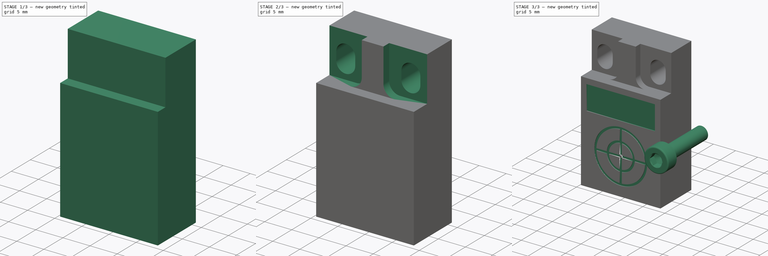
[diagram: build sequence overview — one tinted view per stage of 3, left to right]
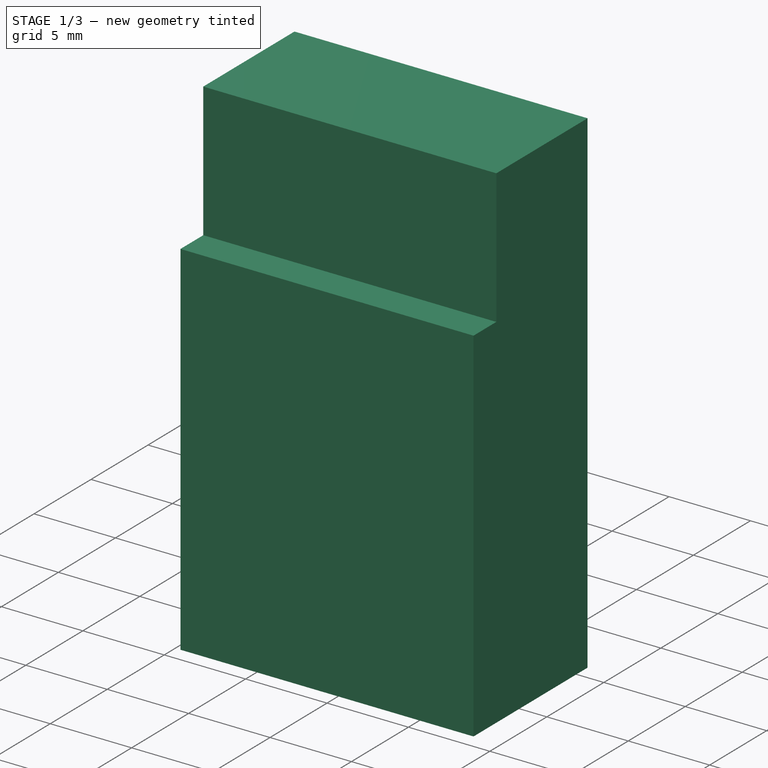
[diagram: stage 1 of 3 — iso view after this stage's code; geometry added in this stage tinted green]
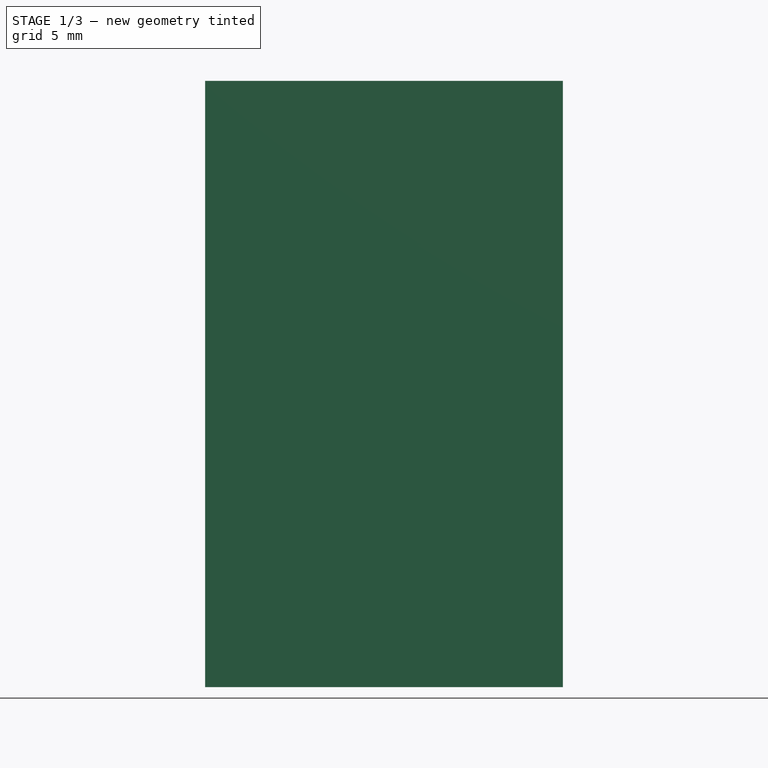
[diagram: stage 1 of 3 — front view after this stage's code; geometry added in this stage tinted green]
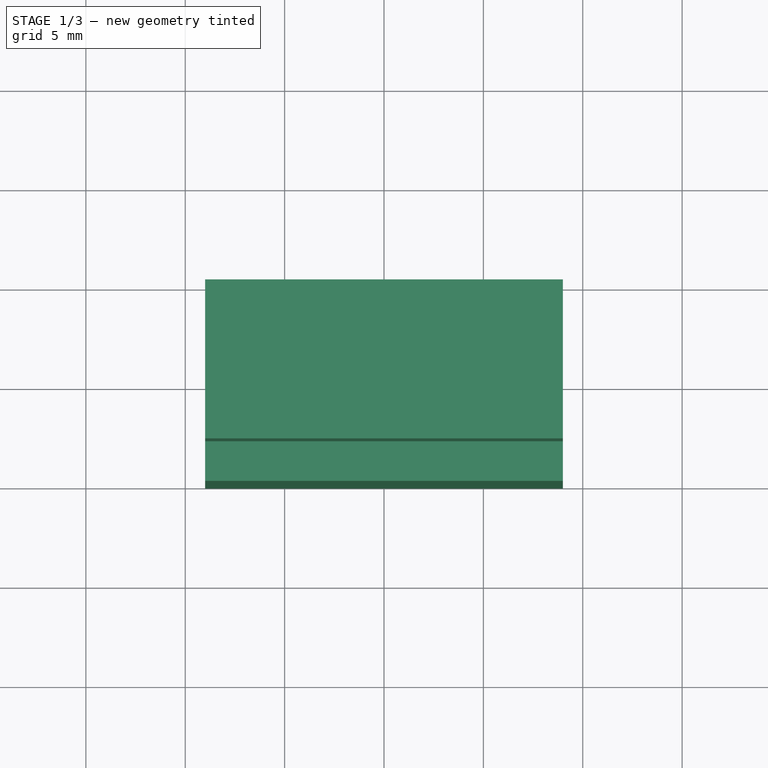
[diagram: stage 1 of 3 — top view after this stage's code; geometry added in this stage tinted green]
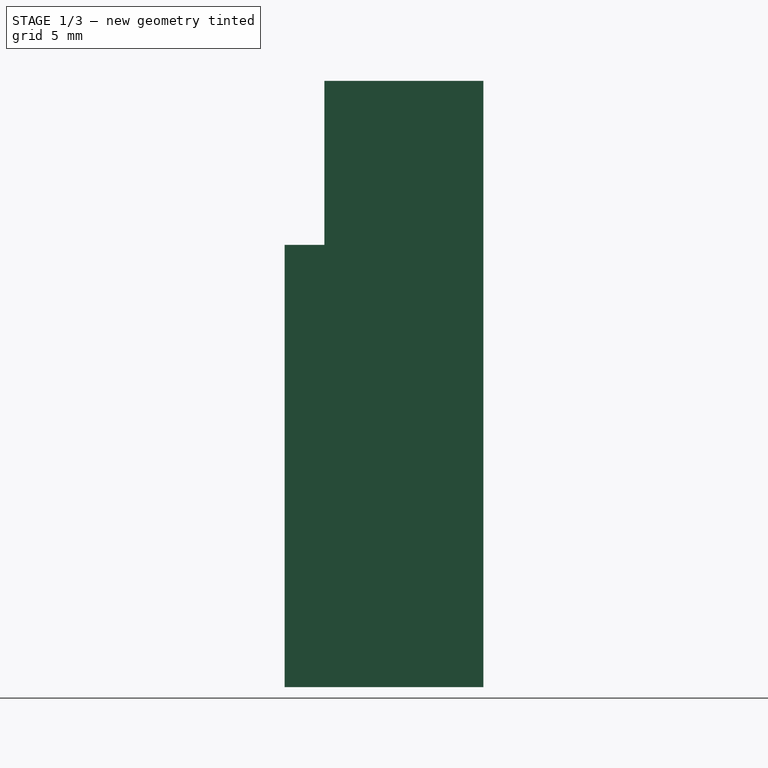
[diagram: stage 1 of 3 — right view after this stage's code; geometry added in this stage tinted green]
FCSTD DOCUMENT  (FreeCAD 2021.717R24301 +3842 (Git))
Label: LimitSensor
License: Creative Commons Attribution
LicenseURL: http://creativecommons.org/licenses/by/4.0/
objects: App::FeaturePython×10, Part::FeaturePython×8, Sketcher::SketchObject×6, PartDesign::Pocket×4, App::Link×2, App::DocumentObjectGroup×2, App::LinkElement×2, PartDesign::Pad×1, PartDesign::Mirrored×1, PartDesign::Body×1
note: 32 computed .brp shape members not serialized (recipe doc carries the construction recipe); baked Part::Feature solids carry a one-line shape summary decoded from their .brp

FEATURE [Sketcher::SketchObject] Sketch
  FullyConstrained = true
  MapMode = 5
  Placement = pos=(0,0,0) rot=(1,0,0;1.5708rad)
  Support = -> [XZ_Plane]
  sketch-geometry (4):
    g0: LineSegment StartX=-9 StartY=15.25 StartZ=0 EndX=9 EndY=15.25 EndZ=0
    g1: LineSegment StartX=9 StartY=15.25 StartZ=0 EndX=9 EndY=-15.25 EndZ=0
    g2: LineSegment StartX=9 StartY=-15.25 StartZ=0 EndX=-9 EndY=-15.25 EndZ=0
    g3: LineSegment StartX=-9 StartY=-15.25 StartZ=0 EndX=-9 EndY=15.25 EndZ=0
  constraints (11):
    c: Coincident(g0,g1)
    c: Coincident(g1,g2)
    c: Coincident(g2,g3)
    c: Coincident(g3,g0)
    c: Horizontal(g0)
    c: Horizontal(g2)
    c: Vertical(g1)
    c: Vertical(g3)
    c: Symmetric(g1,g0,g-1)
    c: DistanceX(g0,g0) = 18
    c: DistanceY(g1,g1) = 30.5
FEATURE [PartDesign::Pad] Pad
  ClaimChildren = false
  Direction = (1,1,1)
  Fit = 0
  FitJoin = 0
  InnerFit = 0
  InnerFitJoin = 0
  InnerTaperAngle = 0
  InnerTaperAngleRev = 0
  Length = 10
  Length2 = 100
  Linearize = true
  NewSolid = false
  Placement = pos=(0,0,0) rot=(1,0,0;1.5708rad)
  Profile = -> Sketch
  Refine = true
  Suppress = false
  Type = 0
  _ProfileBasedVersion = 1
FEATURE [Sketcher::SketchObject] Sketch001
  FullyConstrained = true
  MapMode = 5
  Placement = pos=(0,-10,2.2e-15) rot=(1,0,0;1.5708rad)
  Support = -> [Pad]
  sketch-geometry (4):
    g0: LineSegment StartX=-9 StartY=15.25 StartZ=0 EndX=9 EndY=15.25 EndZ=0
    g1: LineSegment StartX=9 StartY=15.25 StartZ=0 EndX=9 EndY=7 EndZ=0
    g2: LineSegment StartX=9 StartY=7 StartZ=0 EndX=-9 EndY=7 EndZ=0
    g3: LineSegment StartX=-9 StartY=7 StartZ=0 EndX=-9 EndY=15.25 EndZ=0
  constraints (11):
    c: Coincident(g0,g1)
    c: Coincident(g1,g2)
    c: Coincident(g2,g3)
    c: Coincident(g3,g0)
    c: Horizontal(g0)
    c: Vertical(g1)
    c: Vertical(g3)
    c: Symmetric(g1,g2,g-2)
    c: DistanceX(g0,g0) = 18
    c: DistanceY(g1,g1) = 8.25
    c: DistanceY(g-1,g1) = 7
FEATURE [PartDesign::Pocket] Pocket
  BaseFeature = -> Pad
  ClaimChildren = false
  Fit = 0
  FitJoin = 0
  InnerFit = 0
  InnerFitJoin = 0
  InnerTaperAngle = 0
  InnerTaperAngleRev = 0
  Length = 2
  Length2 = 100
  Linearize = true
  NewSolid = false
  Placement = pos=(0,0,0) rot=(1,0,0;1.5708rad)
  Profile = -> Sketch001
  Refine = true
  Suppress = false
  Type = 0
  _ProfileBasedVersion = 1
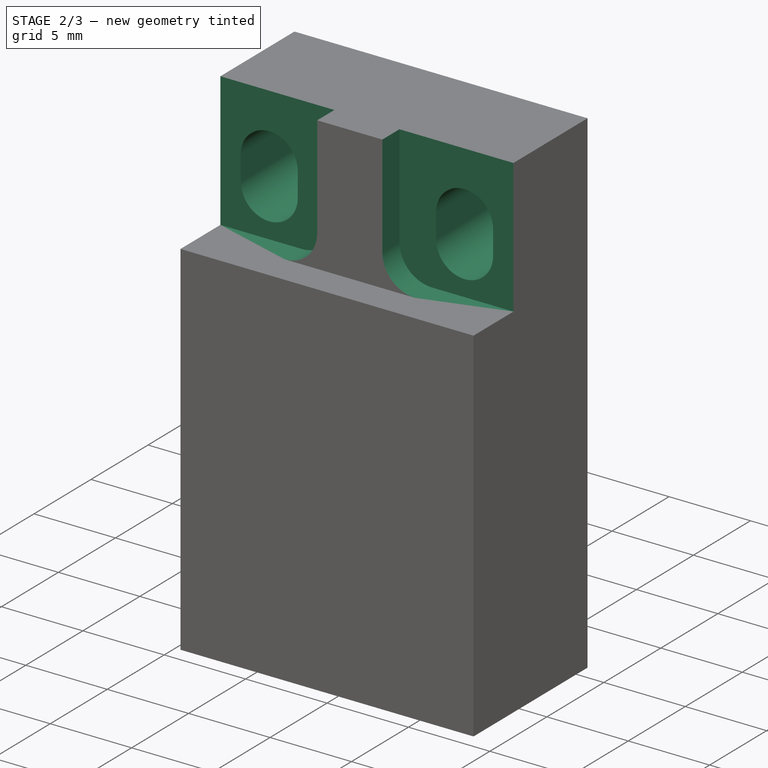
[diagram: stage 2 of 3 — iso view after this stage's code; geometry added in this stage tinted green]
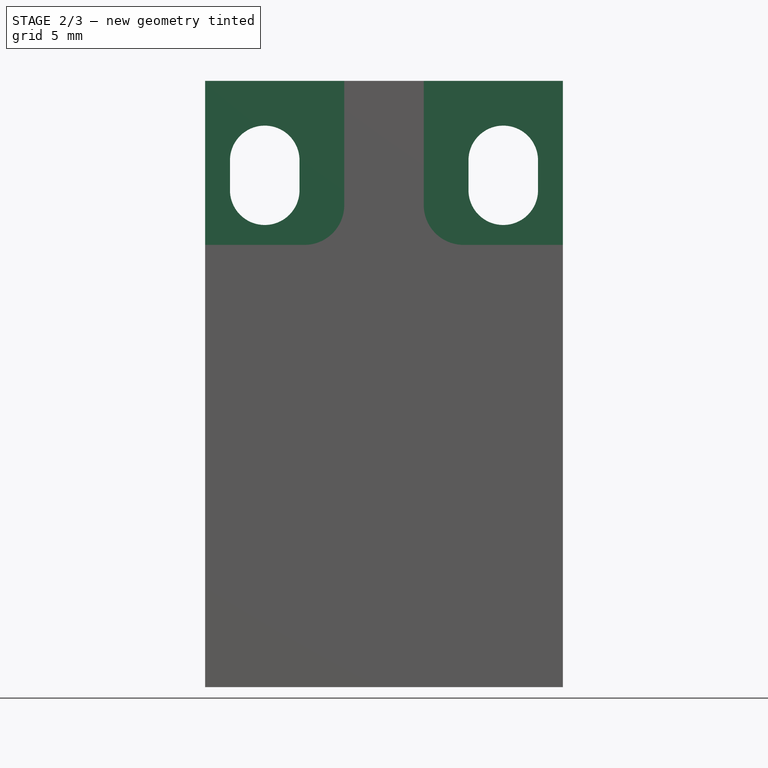
[diagram: stage 2 of 3 — front view after this stage's code; geometry added in this stage tinted green]
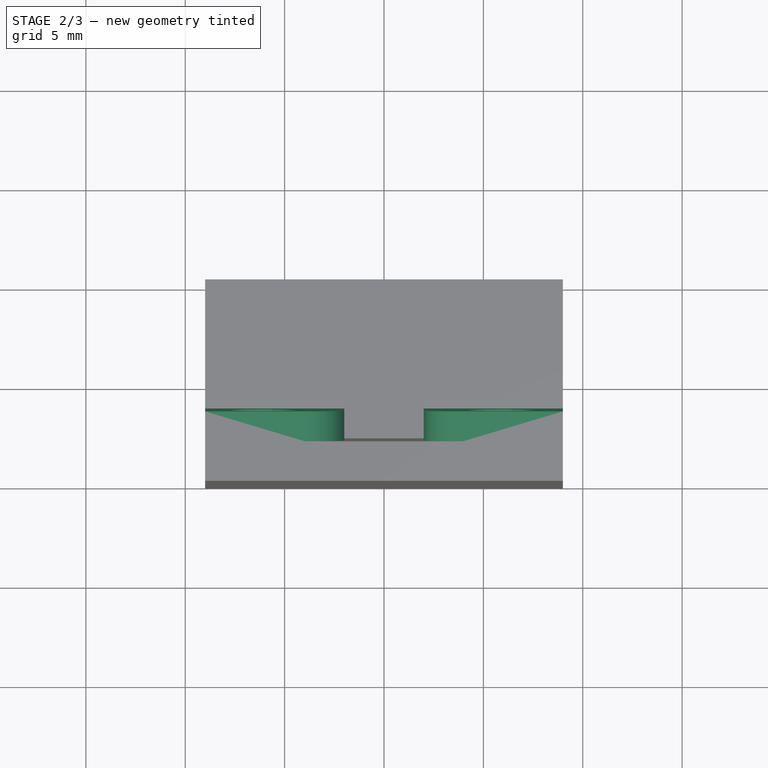
[diagram: stage 2 of 3 — top view after this stage's code; geometry added in this stage tinted green]
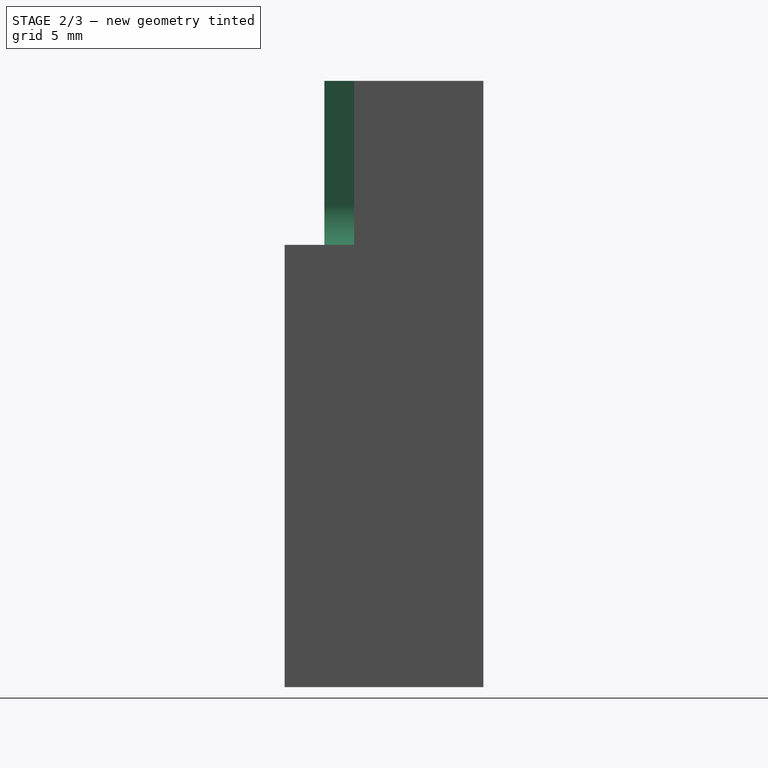
[diagram: stage 2 of 3 — right view after this stage's code; geometry added in this stage tinted green]
FEATURE [Sketcher::SketchObject] Sketch002
  FullyConstrained = true
  MapMode = 5
  Placement = pos=(0,-8,6.9e-15) rot=(1,0,0;1.5708rad)
  Support = -> [Pocket]
  sketch-geometry (4):
    g0: ArcOfCircle CenterX=-6 CenterY=11.25 CenterZ=0 NormalX=0 NormalY=0 NormalZ=1 AngleXU=0 Radius=1.75 StartAngle=0 EndAngle=3.14159
    g1: ArcOfCircle CenterX=-6 CenterY=9.75 CenterZ=0 NormalX=0 NormalY=0 NormalZ=1 AngleXU=0 Radius=1.75 StartAngle=3.14159 EndAngle=6.28319
    g2: LineSegment StartX=-7.75 StartY=11.25 StartZ=0 EndX=-7.75 EndY=9.75 EndZ=0
    g3: LineSegment StartX=-4.25 StartY=11.25 StartZ=0 EndX=-4.25 EndY=9.75 EndZ=0
  constraints (10):
    c: Tangent(g0,g3) = 1.5708
    c: Tangent(g0,g2) = -1.5708
    c: Tangent(g2,g1) = -1.5708
    c: Tangent(g3,g1) = 1.5708
    c: Vertical(g2)
    c: Equal(g0,g1)
    c: DistanceY(g3,g3) = 1.5
    c: Diameter(g0) = 3.5
    c: DistanceY(g-1,g0) = 11.25
    c: DistanceX(g0,g-1) = 6
FEATURE [PartDesign::Pocket] Pocket001
  BaseFeature = -> Pocket
  ClaimChildren = false
  Fit = 0
  FitJoin = 0
  InnerFit = 0
  InnerFitJoin = 0
  InnerTaperAngle = 0
  InnerTaperAngleRev = 0
  Length = 5
  Length2 = 100
  Linearize = true
  NewSolid = false
  Placement = pos=(0,0,0) rot=(1,0,0;1.5708rad)
  Profile = -> Sketch002
  Refine = true
  Suppress = false
  Type = 1
  _ProfileBasedVersion = 1
FEATURE [Sketcher::SketchObject] Sketch003
  ExternalGeometry = -> [Pocket001]
  FullyConstrained = true
  MapMode = 5
  Placement = pos=(0,-8,6.9e-15) rot=(1,0,0;1.5708rad)
  Support = -> [Pocket001]
  sketch-geometry (6):
    g0: LineSegment StartX=-9 StartY=15.25 StartZ=0 EndX=-2 EndY=15.25 EndZ=0
    g1: LineSegment StartX=-2 StartY=15.25 StartZ=0 EndX=-2 EndY=9 EndZ=0
    g2: LineSegment StartX=-4 StartY=7 StartZ=0 EndX=-9 EndY=7 EndZ=0
    g3: LineSegment StartX=-9 StartY=7 StartZ=0 EndX=-9 EndY=15.25 EndZ=0
    g4: ArcOfCircle CenterX=-4 CenterY=9 CenterZ=0 NormalX=0 NormalY=0 NormalZ=1 AngleXU=0 Radius=2 StartAngle=4.71239 EndAngle=6.28319
    g5: GeomPoint [constr] X=-2 Y=7 Z=0
  constraints (16):
    c: Coincident(g0,g1)
    c: Coincident(g2,g3)
    c: Coincident(g3,g0)
    c: Horizontal(g0)
    c: Horizontal(g2)
    c: Vertical(g1)
    c: Vertical(g3)
    c: DistanceX(g2,g-1) = 9
    c: DistanceY(g-1,g0) = 15.25
    c: Horizontal(g-3,g2)
    c: DistanceX(g0,g0) = 7
    c: PointOnObject(g5,g1)
    c: PointOnObject(g5,g2)
    c: Tangent(g1,g4) = 1.5708
    c: Tangent(g2,g4) = 1.5708
    c: Radius(g4) = 2
FEATURE [PartDesign::Pocket] Pocket002
  BaseFeature = -> Pocket001
  ClaimChildren = false
  Fit = 0
  FitJoin = 0
  InnerFit = 0
  InnerFitJoin = 0
  InnerTaperAngle = 0
  InnerTaperAngleRev = 0
  Length = 1.5
  Length2 = 100
  Linearize = true
  NewSolid = false
  Placement = pos=(0,0,0) rot=(1,0,0;1.5708rad)
  Profile = -> Sketch003
  Refine = true
  Suppress = false
  Type = 0
  _ProfileBasedVersion = 1
FEATURE [PartDesign::Mirrored] Mirrored
  BaseFeature = -> Pocket002
  CopyShape = false
  MirrorPlane = -> Sketch003 [V_Axis]
  NewSolid = false
  OriginalSubs = -> [Pocket002,Pocket001]
  Originals = -> [Pocket002,Pocket001]
  ParallelTransform = true
  Placement = pos=(0,0,0) rot=(1,0,0;1.5708rad)
  Refine = true
  SubTransform = true
  Suppress = false
  _Version = 2
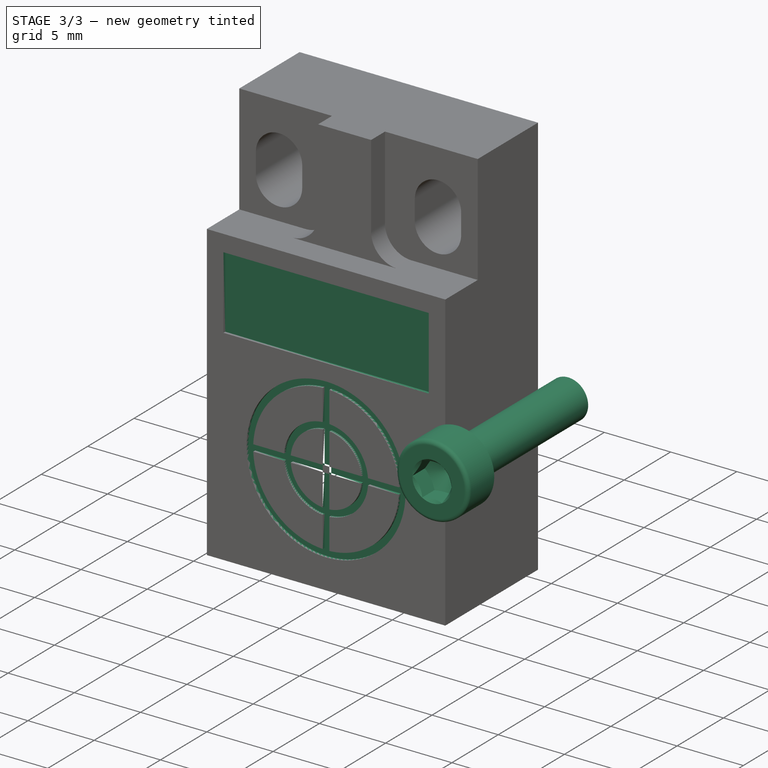
[diagram: stage 3 of 3 — iso view after this stage's code; geometry added in this stage tinted green]
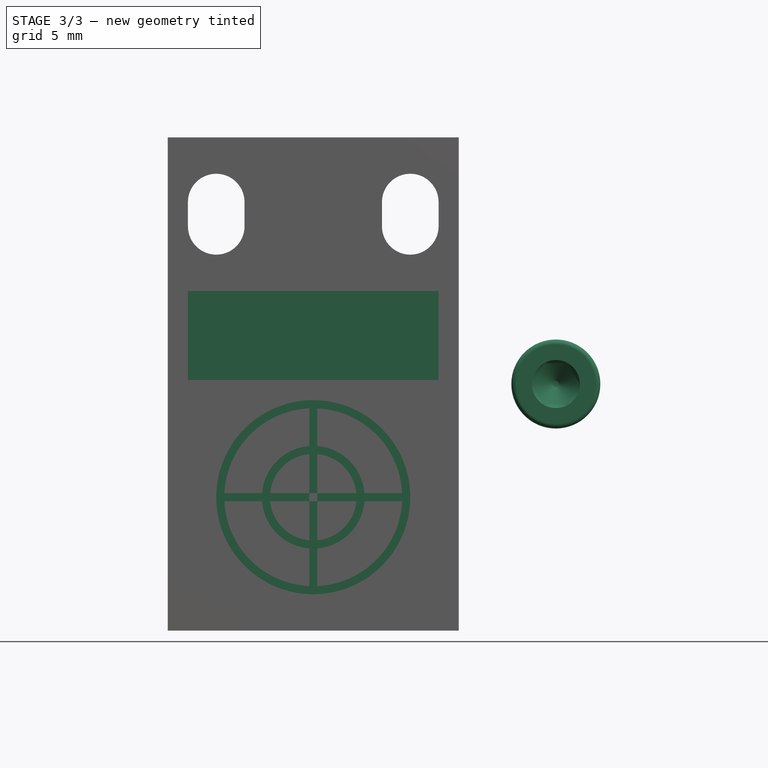
[diagram: stage 3 of 3 — front view after this stage's code; geometry added in this stage tinted green]
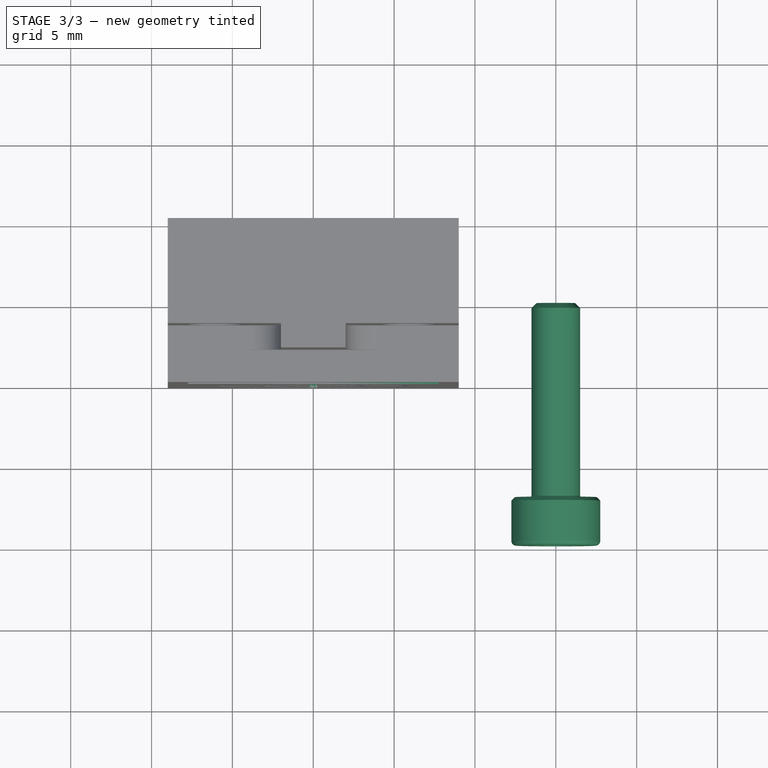
[diagram: stage 3 of 3 — top view after this stage's code; geometry added in this stage tinted green]
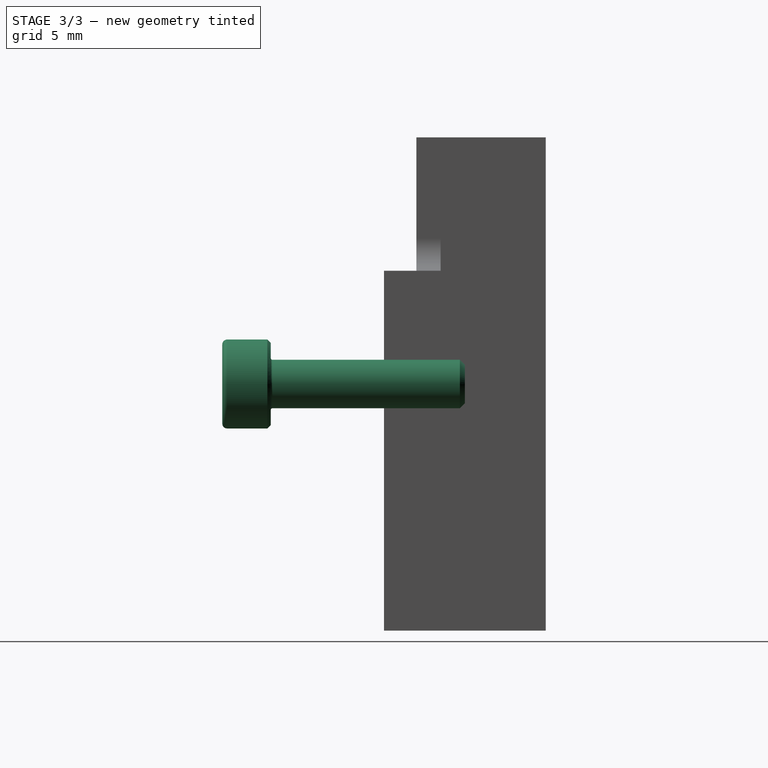
[diagram: stage 3 of 3 — right view after this stage's code; geometry added in this stage tinted green]
FEATURE [Sketcher::SketchObject] Sketch004
  FullyConstrained = false
  MapMode = 5
  Placement = pos=(0,-10,2.2e-15) rot=(1,0,0;1.5708rad)
  Support = -> [Mirrored]
  sketch-geometry (30):
    g0: LineSegment StartX=-7.75 StartY=5.75 StartZ=0 EndX=7.75 EndY=5.75 EndZ=0
    g1: LineSegment StartX=7.75 StartY=5.75 StartZ=0 EndX=7.75 EndY=0.25 EndZ=0
    g2: LineSegment StartX=7.75 StartY=0.25 StartZ=0 EndX=-7.75 EndY=0.25 EndZ=0
    g3: LineSegment StartX=-7.75 StartY=0.25 StartZ=0 EndX=-7.75 EndY=5.75 EndZ=0
    g4: Circle CenterX=0 CenterY=-7 CenterZ=0 NormalX=0 NormalY=0 NormalZ=1 AngleXU=0 Radius=6
    g5: ArcOfCircle CenterX=0 CenterY=-7 CenterZ=0 NormalX=0 NormalY=0 NormalZ=1 AngleXU=0 Radius=5.5 StartAngle=3.18706 EndAngle=4.66692
    g6: ArcOfCircle CenterX=0 CenterY=-7 CenterZ=0 NormalX=0 NormalY=0 NormalZ=1 AngleXU=0 Radius=3.175 StartAngle=3.22041 EndAngle=4.63357
    g7: ArcOfCircle CenterX=0 CenterY=-7 CenterZ=0 NormalX=0 NormalY=0 NormalZ=1 AngleXU=0 Radius=2.675 StartAngle=3.23519 EndAngle=4.61879
    g8: LineSegment StartX=-5.49432 StartY=-6.75 StartZ=0 EndX=-3.16514 EndY=-6.75 EndZ=0
    g9: LineSegment StartX=-5.49432 StartY=-7.25 StartZ=0 EndX=-3.16514 EndY=-7.25 EndZ=0
    g10: LineSegment StartX=0.25 StartY=-1.50568 StartZ=0 EndX=0.25 EndY=-3.83486 EndZ=0
    g11: LineSegment StartX=-0.25 StartY=-1.50568 StartZ=0 EndX=-0.25 EndY=-3.83486 EndZ=0
    g12: LineSegment [constr] StartX=-7.32001 StartY=-7 StartZ=0 EndX=7.24789 EndY=-7 EndZ=0
    g13: ArcOfCircle CenterX=0 CenterY=-7 CenterZ=0 NormalX=0 NormalY=0 NormalZ=1 AngleXU=0 Radius=2.675 StartAngle=0.0935945 EndAngle=1.4772
    g14: ArcOfCircle CenterX=0 CenterY=-7 CenterZ=0 NormalX=0 NormalY=0 NormalZ=1 AngleXU=0 Radius=3.175 StartAngle=0.0788218 EndAngle=1.49197
    g15: ArcOfCircle CenterX=0 CenterY=-7 CenterZ=0 NormalX=0 NormalY=0 NormalZ=1 AngleXU=0 Radius=5.5 StartAngle=0.0454702 EndAngle=1.52533
    g16: LineSegment StartX=3.16514 StartY=-7.25 StartZ=0 EndX=5.49432 EndY=-7.25 EndZ=0
    g17: LineSegment StartX=3.16514 StartY=-6.75 StartZ=0 EndX=5.49432 EndY=-6.75 EndZ=0
    g18: LineSegment StartX=-2.66329 StartY=-6.75 StartZ=0 EndX=2.66329 EndY=-6.75 EndZ=0
    g19: LineSegment StartX=-2.66329 StartY=-7.25 StartZ=0 EndX=2.66329 EndY=-7.25 EndZ=0
    g20: LineSegment StartX=-0.25 StartY=-4.33671 StartZ=0 EndX=-0.25 EndY=-9.66329 EndZ=0
    g21: LineSegment StartX=0.25 StartY=-4.33671 StartZ=0 EndX=0.25 EndY=-9.66329 EndZ=0
    g22: ArcOfCircle CenterX=0 CenterY=-7 CenterZ=0 NormalX=0 NormalY=0 NormalZ=1 AngleXU=0 Radius=2.675 StartAngle=1.66439 EndAngle=3.048
    g23: ArcOfCircle CenterX=0 CenterY=-7 CenterZ=0 NormalX=0 NormalY=0 NormalZ=1 AngleXU=0 Radius=2.675 StartAngle=4.80598 EndAngle=6.18959
    g24: ArcOfCircle CenterX=0 CenterY=-7 CenterZ=0 NormalX=0 NormalY=0 NormalZ=1 AngleXU=0 Radius=3.175 StartAngle=4.79121 EndAngle=6.20436
    g25: LineSegment StartX=0.25 StartY=-10.1651 StartZ=0 EndX=0.25 EndY=-12.4943 EndZ=0
    g26: LineSegment StartX=-0.25 StartY=-10.1651 StartZ=0 EndX=-0.25 EndY=-12.4943 EndZ=0
    g27: ArcOfCircle CenterX=0 CenterY=-7 CenterZ=0 NormalX=0 NormalY=0 NormalZ=1 AngleXU=0 Radius=5.5 StartAngle=4.75786 EndAngle=6.23772
    g28: ArcOfCircle CenterX=0 CenterY=-7 CenterZ=0 NormalX=0 NormalY=0 NormalZ=1 AngleXU=0 Radius=5.5 StartAngle=1.61627 EndAngle=3.09612
    g29: ArcOfCircle CenterX=0 CenterY=-7 CenterZ=0 NormalX=0 NormalY=0 NormalZ=1 AngleXU=0 Radius=3.175 StartAngle=1.64962 EndAngle=3.06277
  constraints (80):
    c: Coincident(g0,g1)
    c: Coincident(g1,g2)
    c: Coincident(g2,g3)
    c: Coincident(g3,g0)
    c: Horizontal(g2)
    c: Vertical(g1)
    c: Vertical(g3)
    c: Symmetric(g0,g0,g-2)
    c: DistanceX(g0,g0) = 15.5
    c: DistanceY(g1,g1) = 5.5
    c: PointOnObject(g4,g-2)
    c: Coincident(g5,g4)
    c: Coincident(g6,g4)
    c: Coincident(g7,g4)
    c: Diameter(g7) = 5.35
    c: Diameter(g6) = 6.35
    c: Diameter(g5) = 11
    c: Diameter(g4) = 12
    c: Horizontal(g8)
    c: Horizontal(g9)
    c: PointOnObject(g10,g5)
    c: Vertical(g10)
    c: Vertical(g11)
    c: Symmetric(g11,g10,g-2)
    c: DistanceX(g11,g10) = 0.5
    c: Horizontal(g12)
    c: Symmetric(g17,g16,g12)
    c: DistanceY(g16,g17) = 0.5
    c: Coincident(g28,g8)
    c: Coincident(g5,g9)
    c: Equal(g7,g13)
    c: Coincident(g7,g13)
    c: Equal(g6,g14)
    c: Coincident(g6,g14)
    c: Equal(g5,g15)
    c: Coincident(g15,g17)
    c: Coincident(g5,g15)
    c: Coincident(g27,g16)
    c: Coincident(g19,g23)
    c: Coincident(g16,g24)
    c: Tangent(g9,g16)
    c: Coincident(g18,g13)
    c: Coincident(g17,g14)
    c: Tangent(g8,g17)
    c: Coincident(g8,g29)
    c: Coincident(g18,g22)
    c: Tangent(g8,g18)
    c: Coincident(g9,g6)
    c: Coincident(g19,g7)
    c: Tangent(g9,g19)
    c: Tangent(g11,g20)
    c: Tangent(g10,g21)
    c: Equal(g13,g22)
    c: Coincident(g13,g21)
    c: Coincident(g22,g20)
    c: Coincident(g13,g22)
    c: Equal(g7,g23)
    c: Coincident(g7,g23)
    c: Equal(g6,g24)
    c: Coincident(g6,g24)
    c: Coincident(g21,g23)
    c: Coincident(g25,g24)
    c: Tangent(g21,g25)
    c: Coincident(g20,g7)
    c: Coincident(g26,g6)
    c: Tangent(g20,g26)
    c: Equal(g5,g27)
    c: Coincident(g5,g26)
    c: Coincident(g27,g25)
    c: Coincident(g5,g27)
    c: Equal(g15,g28)
    c: PointOnObject(g15,g10)
    c: PointOnObject(g28,g11)
    c: Coincident(g15,g28)
    c: DistanceY(g4,g-1) = 7
    c: DistanceY(g-1,g1) = 0.25
    c: Equal(g14,g29)
    c: Coincident(g14,g10)
    c: Coincident(g29,g11)
    c: Coincident(g14,g29)
FEATURE [PartDesign::Pocket] Pocket003
  BaseFeature = -> Mirrored
  ClaimChildren = false
  Fit = 0
  FitJoin = 0
  InnerFit = 0
  InnerFitJoin = 0
  InnerTaperAngle = 0
  InnerTaperAngleRev = 0
  Length = 0.2
  Length2 = 100
  Linearize = true
  NewSolid = false
  Placement = pos=(0,0,0) rot=(1,0,0;1.5708rad)
  Profile = -> Sketch004
  Refine = true
  Suppress = false
  Type = 0
  _ProfileBasedVersion = 1
FEATURE [App::Link] Link  label="Link(Limit sensor)"
  AutoLinkLabel = true
  AutoPlacement = true
  LinkedObject = -> Body
  SyncGroupVisibility = false
  _LinkVersion = 1
FEATURE [Sketcher::SketchObject] Sketch005
  ExternalGeometry = -> [Pocket003]
  FullyConstrained = true
  MapMode = 5
  Placement = pos=(0,0,0) rot=(-1,0,0;1.5708rad)
  Support = -> [Pocket003]
  sketch-geometry (2):
    g0: Circle CenterX=-6 CenterY=-10.5 CenterZ=0 NormalX=0 NormalY=0 NormalZ=1 AngleXU=0 Radius=1.5
    g1: Circle CenterX=6 CenterY=-10.5 CenterZ=0 NormalX=0 NormalY=0 NormalZ=1 AngleXU=0 Radius=1.5
  constraints (4):
    c: Symmetric(g-3,g-4,g0)
    c: Symmetric(g-5,g-6,g1)
    c: Equal(g1,g0)
    c: Diameter(g1) = 3
FEATURE [PartDesign::Body] Body  label="Limit sensor"
  AutoGroupSolids = false
  ExportMode = 0
  Group = -> [Sketch,Pad,Sketch001,Pocket,Sketch002,Pocket001,Sketch003,Pocket002,Mirrored,Sketch004,Pocket003,Sketch005]
  Origin = -> Origin
  Tip = -> Pocket003
  _ExportChildren = -> [Pad,Pocket,Pocket001,Pocket002,Mirrored,Pocket003,Sketch005]
  _GroupVersion = 1
FEATURE [Part::FeaturePython] Screw  label="M3x12-Screw"  # Fasteners workbench fastener (typed FeaturePython)
  Placement = pos=(15,-17,-3.8e-15) rot=(1,0,0;1.5708rad)
  diameter = 4
  invert = false
  length = 10
  lengthCustom = 12
  matchOuter = false
  offset = 0
  thread = false
  type = 33
FEATURE [App::DocumentObjectGroup] Group  label="Components"
  ExportMode = 1
  Group = -> [Body,Screw]
  _GroupVersion = 1
FEATURE [App::LinkElement] Link001_i0
  LinkPlacement = pos=(-9,10.5,-10.5) rot=(0,0,1;0rad)
  LinkedObject = -> Screw
  Placement = pos=(-9,10.5,-10.5) rot=(0,0,1;0rad)
  _LinkVersion = 0
FEATURE [App::LinkElement] Link001_i1
  LinkPlacement = pos=(-21,10.5,-10.5) rot=(0,0,1;0rad)
  LinkedObject = -> Screw
  Placement = pos=(-21,10.5,-10.5) rot=(0,0,1;0rad)
  _LinkVersion = 0
FEATURE [App::Link] Link001  label="M3x12-Screw 2pc"
  AutoLinkLabel = true
  AutoPlacement = true
  ElementCount = 2
  ElementList = -> [Link001_i0,Link001_i1]
  LinkPlacement = pos=(15,-17,-3.8e-15) rot=(1,0,0;1.5708rad)
  LinkedObject = -> Screw
  Placement = pos=(15,-17,-3.8e-15) rot=(1,0,0;1.5708rad)
  SyncGroupVisibility = false
  _LinkVersion = 1
FEATURE [Part::FeaturePython] Parts  # WARN: FeaturePython — macro-defined, semantics opaque (R4)
  Group = -> [Link,Link001]
  GroupMode = 0
  _LinkVersion = 1
FEATURE [App::DocumentObjectGroup] Group001  label="Assemblies"
  ExportMode = 1
  Group = -> [Assembly]
  _GroupVersion = 1
FEATURE [Part::FeaturePython] Assembly  label="Limit sensor Assembly"  # WARN: FeaturePython — macro-defined, semantics opaque (R4)
  AutoRelax = true
  BuildShape = 0
  Freeze = false
  Group = -> [Constraints,Elements,Parts]
  Verbose = false
  _LinkVersion = 1
  _SolverType = 1
  _Version = 1
FEATURE [App::FeaturePython] Constraints  # WARN: FeaturePython — macro-defined, semantics opaque (R4)
  Group = -> [Constraint,Constraint001,Constraint002]
  _LinkVersion = 1
  _Version = 1
FEATURE [App::FeaturePython] Elements  # WARN: FeaturePython — macro-defined, semantics opaque (R4)
  Group = -> [_Element,Element,Element001,_Element001,_Element002]
  _LinkVersion = 1
FEATURE [App::FeaturePython] Constraint  label="Locked"  # WARN: FeaturePython — macro-defined, semantics opaque (R4)
  Disabled = false
  Group = -> [ElementLink]
  _ConstraintType = 0
  _LinkVersion = 1
  _Parent = -> Constraints
FEATURE [App::FeaturePython] ElementLink  label="_Element"  # link proxy (typed FeaturePython)
  LinkTransform = true
  LinkedObject = -> _Element
  _LinkVersion = 1
  _Parent = -> Constraint
FEATURE [Part::FeaturePython] _Element  # link proxy (typed FeaturePython)
  Detach = false
  LinkTransform = true
  LinkedObject = -> Link [Pocket003.Face2]
  _LinkVersion = 1
  _Parent = -> Elements
FEATURE [Part::FeaturePython] Element  label="mate l"  # link proxy (typed FeaturePython)
  Detach = false
  LinkTransform = true
  LinkedObject = -> Link [Sketch005.Edge1]
  _LinkVersion = 1
  _Parent = -> Elements
FEATURE [Part::FeaturePython] Element001  label="mate r"  # link proxy (typed FeaturePython)
  Detach = false
  LinkTransform = true
  LinkedObject = -> Link [Sketch005.Edge2]
  _LinkVersion = 1
  _Parent = -> Elements
FEATURE [App::FeaturePython] Constraint001  label="Attachment"  # WARN: FeaturePython — macro-defined, semantics opaque (R4)
  Cascade = false
  Disabled = false
  Group = -> [ElementLink001,ElementLink002]
  Multiply = false
  _ConstraintType = 45
  _LinkVersion = 0
  _Parent = -> Constraints
FEATURE [App::FeaturePython] ElementLink001  label="_Element001"  # link proxy (typed FeaturePython)
  LinkTransform = true
  LinkedObject = -> _Element001
  Offset = pos=(0,0,-6.5) rot=(1,0,0;3.14159rad)
  Placement = pos=(-9e-16,-6.5,21) rot=(1,0,0;3.14159rad)
  _LinkVersion = 0
  _Parent = -> Constraint001
FEATURE [Part::FeaturePython] _Element001  # link proxy (typed FeaturePython)
  Detach = false
  LinkTransform = true
  LinkedObject = -> Link001 [0.Edge9]
  _LinkVersion = 0
  _Parent = -> Elements
FEATURE [App::FeaturePython] ElementLink002  label="mate r"  # link proxy (typed FeaturePython)
  LinkTransform = true
  LinkedObject = -> Element001
  _LinkVersion = 0
  _Parent = -> Constraint001
FEATURE [App::FeaturePython] Constraint002  label="Attachment001"  # WARN: FeaturePython — macro-defined, semantics opaque (R4)
  Cascade = false
  Disabled = false
  Group = -> [ElementLink003,ElementLink004]
  Multiply = false
  _ConstraintType = 45
  _LinkVersion = 0
  _Parent = -> Constraints
FEATURE [App::FeaturePython] ElementLink003  label="_Element002"  # link proxy (typed FeaturePython)
  LinkTransform = true
  LinkedObject = -> _Element002
  Offset = pos=(0,0,-6.5) rot=(1,0,0;3.14159rad)
  Placement = pos=(9e-16,-6.5,21) rot=(1,0,0;3.14159rad)
  _LinkVersion = 0
  _Parent = -> Constraint002
FEATURE [Part::FeaturePython] _Element002  # link proxy (typed FeaturePython)
  Detach = false
  LinkTransform = true
  LinkedObject = -> Link001 [1.Edge9]
  _LinkVersion = 0
  _Parent = -> Elements
FEATURE [App::FeaturePython] ElementLink004  label="mate l"  # link proxy (typed FeaturePython)
  LinkTransform = true
  LinkedObject = -> Element
  _LinkVersion = 0
  _Parent = -> Constraint002
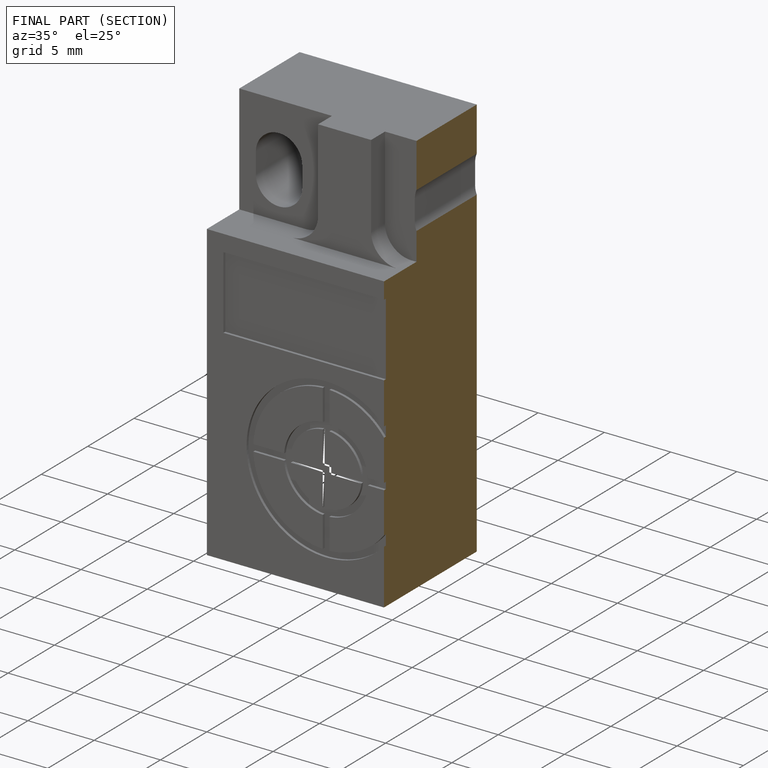
[diagram: finished part — half-section view (interior)]
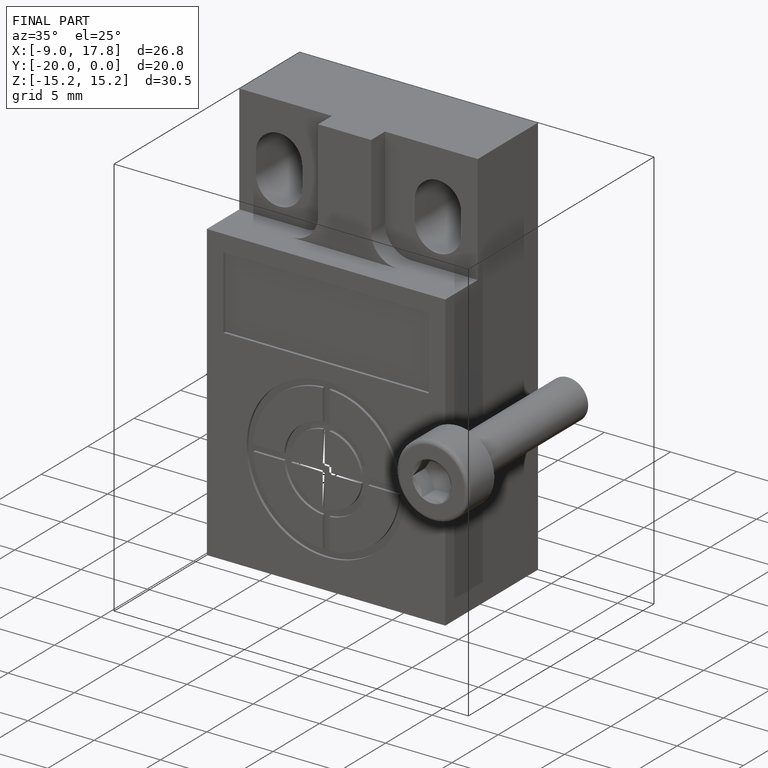
[diagram: finished part — iso view with bounding-box wireframe]
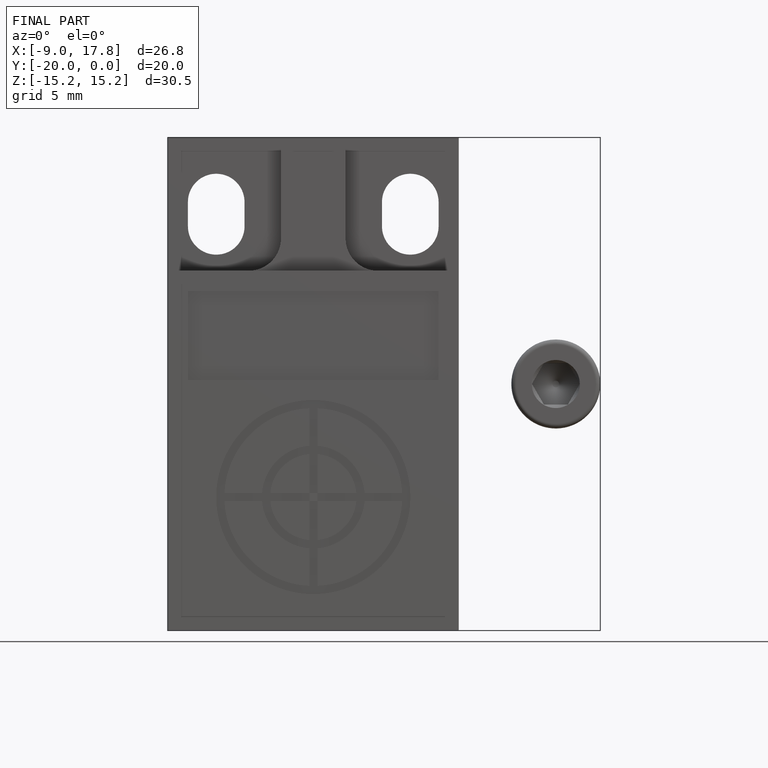
[diagram: finished part — front view with bounding-box wireframe]
